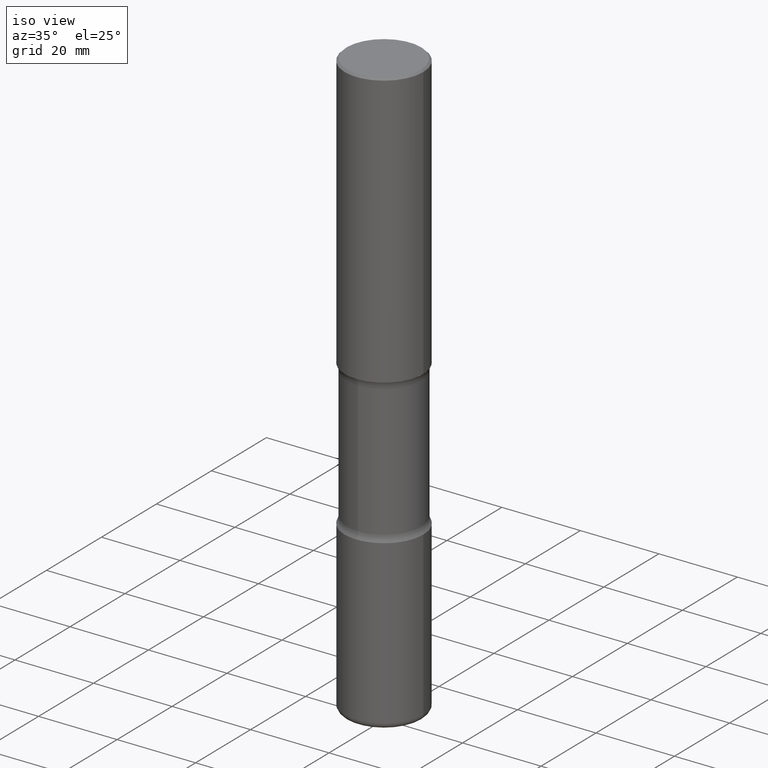
[diagram: clean part render]
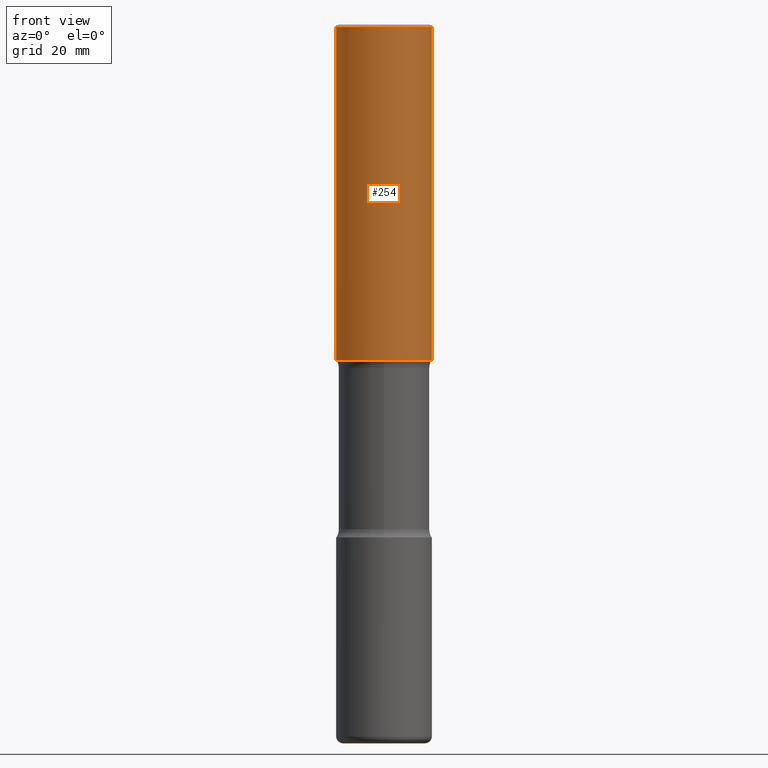
[diagram: tour spotlight — one face highlighted and labeled with its STEP entity id]
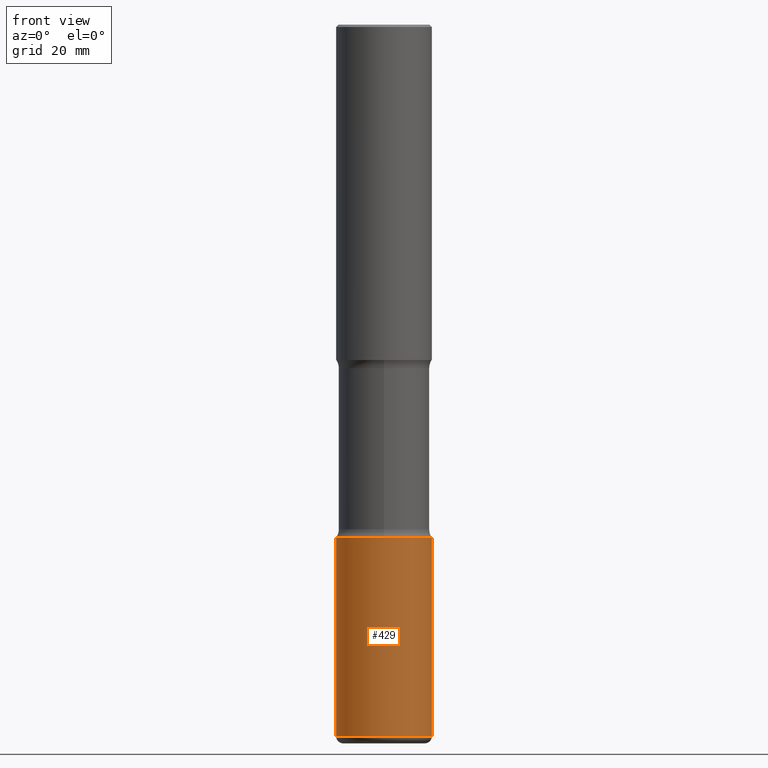
[diagram: tour spotlight — one face highlighted and labeled with its STEP entity id]
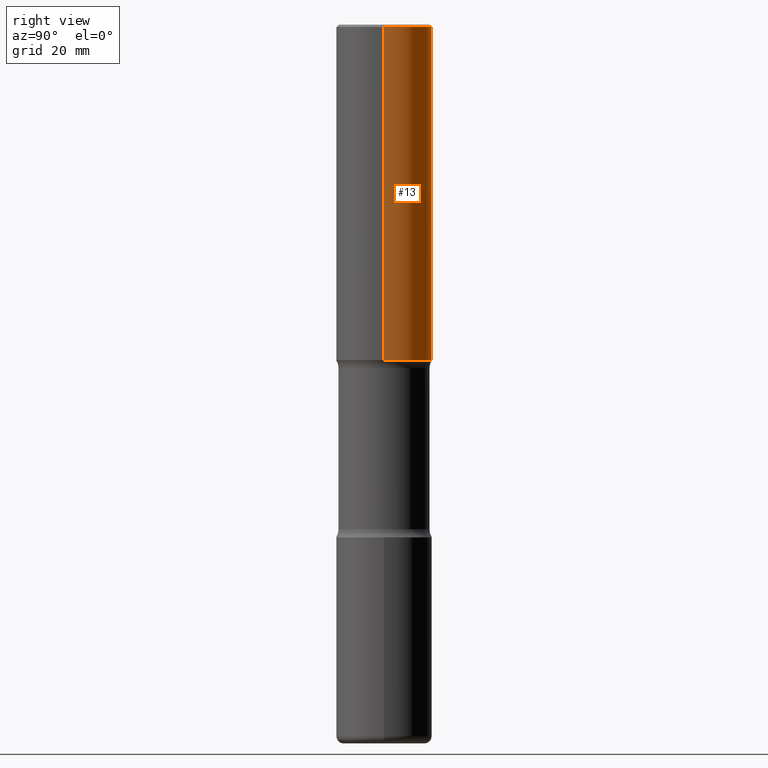
[diagram: tour spotlight — one face highlighted and labeled with its STEP entity id]
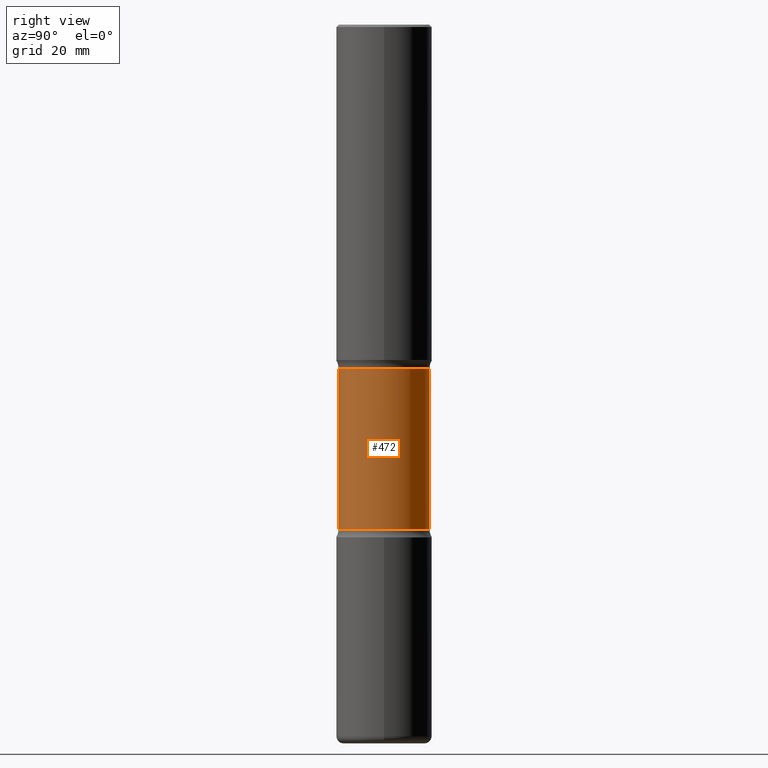
[diagram: tour spotlight — one face highlighted and labeled with its STEP entity id]
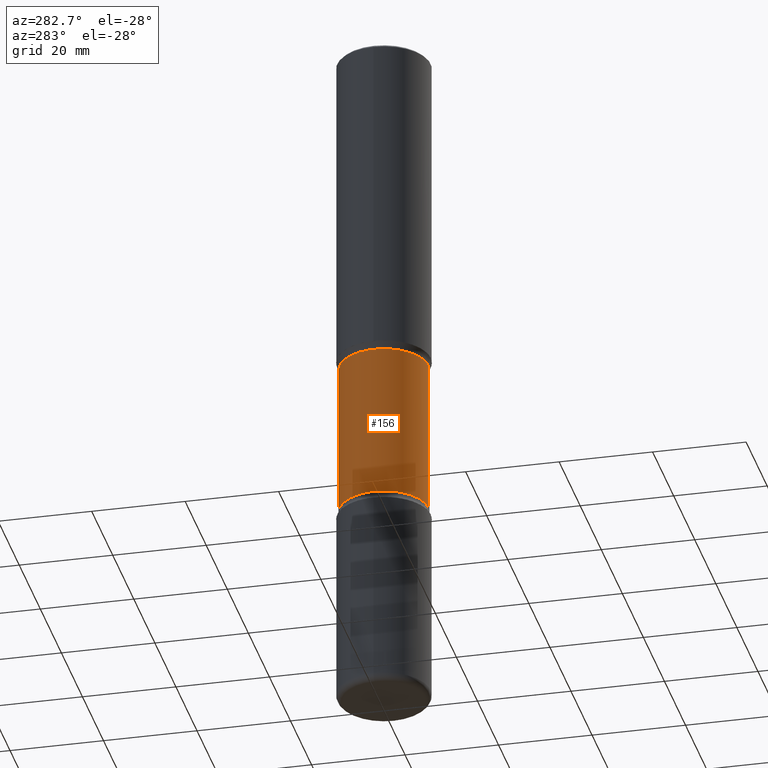
[diagram: tour spotlight — one face highlighted and labeled with its STEP entity id]
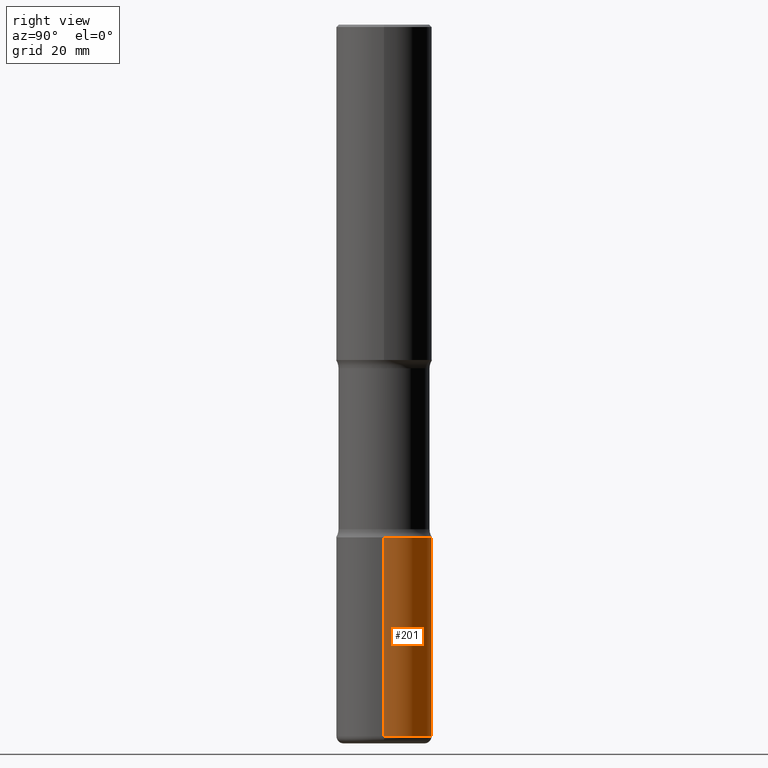
[diagram: tour spotlight — one face highlighted and labeled with its STEP entity id]
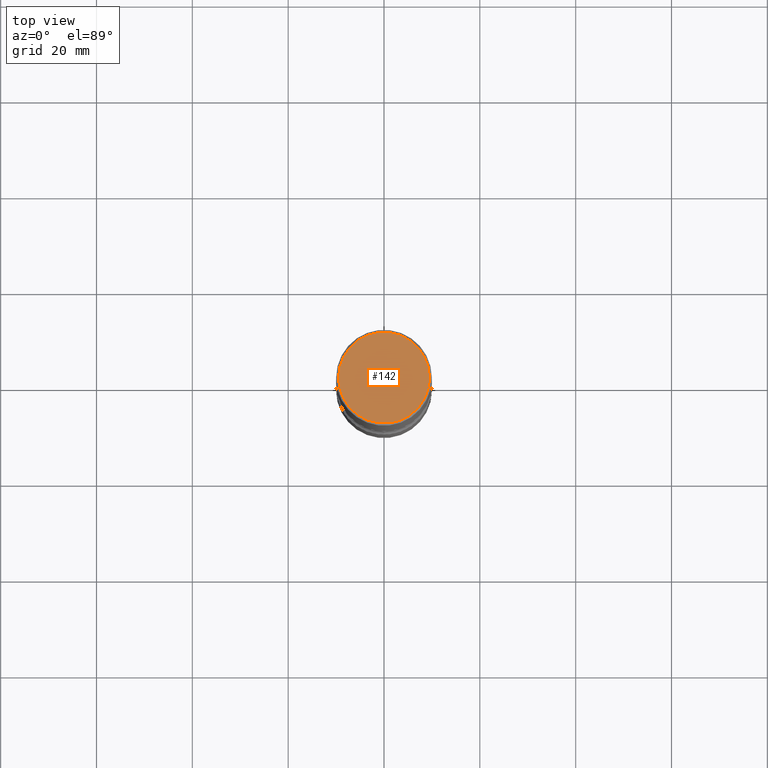
[diagram: tour spotlight — one face highlighted and labeled with its STEP entity id]
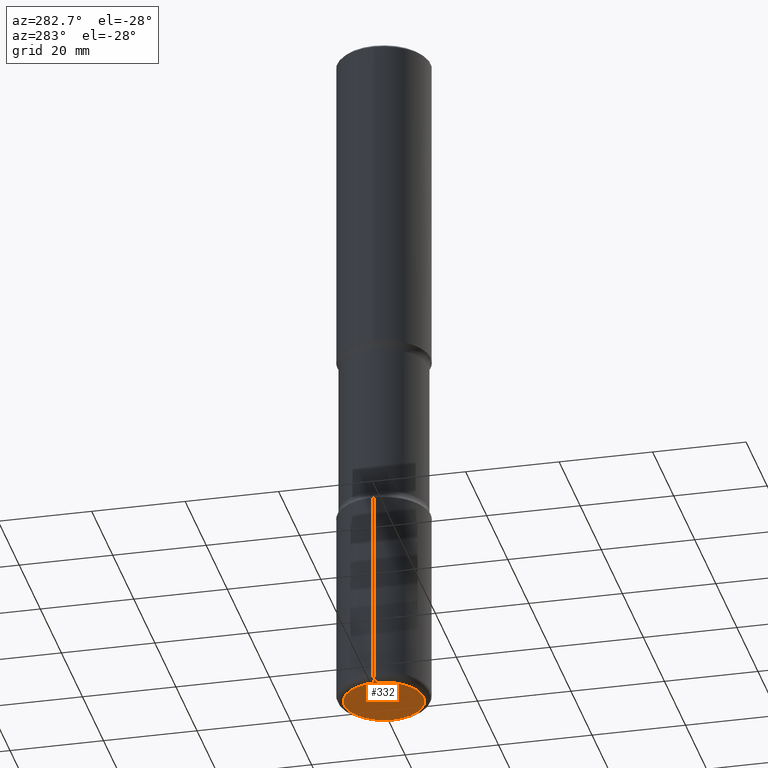
[diagram: tour spotlight — one face highlighted and labeled with its STEP entity id]
A machine part: a face-by-face anatomy tour. The part has 20 B-rep faces; the first image is the clean iso view, then the 8 largest visible faces are spotlighted one at a time (largest first), each with its STEP entity span.

Face 1 — front view, entity #254. In plain terms, the highlighted cylindrical surface (partial cylindrical patch) has radius 10 mm, axis along (-0, 0, 1).
Definition (entity closure, byte-faithful):
#25 = DIRECTION ( 'NONE',  ( -2.445468806185136877E-29, 3.491481338843145188E-15, 1.000000000000000000 ) ) ;
#36 = CARTESIAN_POINT ( 'NONE',  ( 0.3936999999999999389, -2.770807688499514945E-15, -0.02000000000000010103 ) ) ;
#52 = EDGE_CURVE ( 'NONE', #106, #219, #553, .T. ) ;
#56 = DIRECTION ( 'NONE',  ( 1.000000000000000000, -6.982962677686265133E-15, 0.000000000000000000 ) ) ;
#96 = AXIS2_PLACEMENT_3D ( 'NONE', #270, #329, #546 ) ;
#106 = VERTEX_POINT ( 'NONE', #276 ) ;
#118 = VECTOR ( 'NONE', #212, 39.37007874015748143 ) ;
#119 = AXIS2_PLACEMENT_3D ( 'NONE', #312, #486, #56 ) ;
#126 = VERTEX_POINT ( 'NONE', #330 ) ;
#131 = LINE ( 'NONE', #385, #118 ) ;
#133 = ORIENTED_EDGE ( 'NONE', *, *, #52, .T. ) ;
#152 = CARTESIAN_POINT ( 'NONE',  ( 0.3937000000000001054, -2.749192406205084005E-15, 1.919750796630860452E-29 ) ) ;
#174 = CIRCLE ( 'NONE', #119, 0.3937000000000002164 ) ;
#212 = DIRECTION ( 'NONE',  ( -2.445468806185136877E-29, 3.491481338843145188E-15, 1.000000000000000000 ) ) ;
#219 = VERTEX_POINT ( 'NONE', #36 ) ;
#232 = EDGE_CURVE ( 'NONE', #257, #126, #131, .T. ) ;
#254 = ADVANCED_FACE ( 'NONE', ( #426 ), #333, .T. ) ;
#257 = VERTEX_POINT ( 'NONE', #481 ) ;
#262 = ORIENTED_EDGE ( 'NONE', *, *, #418, .T. ) ;
#270 = CARTESIAN_POINT ( 'NONE',  ( 4.890937612370298557E-31, -6.982962677686327354E-17, -0.02000000000000010103 ) ) ;
#276 = CARTESIAN_POINT ( 'NONE',  ( 0.3937000000000002164, -1.237136582792290287E-14, -2.755899999999998240 ) ) ;
#277 = AXIS2_PLACEMENT_3D ( 'NONE', #301, #384, #522 ) ;
#301 = CARTESIAN_POINT ( 'NONE',  ( 0.000000000000000000, 0.000000000000000000, 0.000000000000000000 ) ) ;
#312 = CARTESIAN_POINT ( 'NONE',  ( 6.739467482965614869E-29, -9.622173421717819657E-15, -2.755899999999998240 ) ) ;
#329 = DIRECTION ( 'NONE',  ( -2.445468806185136597E-29, 3.491481338843145583E-15, 1.000000000000000000 ) ) ;
#330 = CARTESIAN_POINT ( 'NONE',  ( -0.3936999999999999389, 2.679362779428219524E-15, -0.02000000000000010103 ) ) ;
#333 = CYLINDRICAL_SURFACE ( 'NONE', #277, 0.3937000000000001054 ) ;
#338 = CIRCLE ( 'NONE', #96, 0.3936999999999999389 ) ;
#384 = DIRECTION ( 'NONE',  ( -2.445468806185136597E-29, 3.491481338843145583E-15, 1.000000000000000000 ) ) ;
#385 = CARTESIAN_POINT ( 'NONE',  ( -0.3937000000000001054, 2.797406750687515181E-15, -1.936584745033357016E-29 ) ) ;
#403 = VECTOR ( 'NONE', #25, 39.37007874015748143 ) ;
#418 = EDGE_CURVE ( 'NONE', #257, #106, #174, .T. ) ;
#426 = FACE_OUTER_BOUND ( 'NONE', #493, .T. ) ;
#476 = ORIENTED_EDGE ( 'NONE', *, *, #232, .F. ) ;
#481 = CARTESIAN_POINT ( 'NONE',  ( -0.3937000000000002720, -2.048594773559823141E-15, -2.755899999999998240 ) ) ;
#483 = ORIENTED_EDGE ( 'NONE', *, *, #554, .F. ) ;
#486 = DIRECTION ( 'NONE',  ( -2.445468806185136597E-29, 3.491481338843145583E-15, 1.000000000000000000 ) ) ;
#493 = EDGE_LOOP ( 'NONE', ( #476, #262, #133, #483 ) ) ;
#522 = DIRECTION ( 'NONE',  ( 1.000000000000000000, -6.982962677686266711E-15, 4.876176775795935793E-29 ) ) ;
#546 = DIRECTION ( 'NONE',  ( 1.000000000000000000, -6.982962677686266711E-15, 0.000000000000000000 ) ) ;
#553 = LINE ( 'NONE', #152, #403 ) ;
#554 = EDGE_CURVE ( 'NONE', #126, #219, #338, .T. ) ;

Face 2 — front view, entity #429. In plain terms, the highlighted cylindrical surface (partial cylindrical patch) has radius 10 mm, axis along (-0, 0, 1).
Definition (entity closure, byte-faithful):
#8 = AXIS2_PLACEMENT_3D ( 'NONE', #256, #15, #366 ) ;
#15 = DIRECTION ( 'NONE',  ( -2.445468806185136597E-29, 3.491481338843145583E-15, 1.000000000000000000 ) ) ;
#20 = VERTEX_POINT ( 'NONE', #279 ) ;
#33 = AXIS2_PLACEMENT_3D ( 'NONE', #297, #480, #252 ) ;
#34 = VECTOR ( 'NONE', #220, 39.37007874015748143 ) ;
#45 = EDGE_LOOP ( 'NONE', ( #145, #537, #223, #216 ) ) ;
#54 = CARTESIAN_POINT ( 'NONE',  ( 0.3937000000000003830, -2.749192406205085978E-15, 1.919750796630861853E-29 ) ) ;
#57 = VERTEX_POINT ( 'NONE', #70 ) ;
#70 = CARTESIAN_POINT ( 'NONE',  ( -0.3937000000000003830, -1.761518974872504126E-14, -5.846399999999999153 ) ) ;
#132 = LINE ( 'NONE', #54, #34 ) ;
#145 = ORIENTED_EDGE ( 'NONE', *, *, #300, .F. ) ;
#167 = VERTEX_POINT ( 'NONE', #240 ) ;
#186 = DIRECTION ( 'NONE',  ( -2.445468806185136597E-29, 3.491481338843145583E-15, 1.000000000000000000 ) ) ;
#190 = VECTOR ( 'NONE', #349, 39.37007874015748143 ) ;
#203 = CARTESIAN_POINT ( 'NONE',  ( -0.3937000000000003830, 2.797406750687517153E-15, -1.936584745033358137E-29 ) ) ;
#216 = ORIENTED_EDGE ( 'NONE', *, *, #337, .F. ) ;
#220 = DIRECTION ( 'NONE',  ( -2.445468806185136877E-29, 3.491481338843145188E-15, 1.000000000000000000 ) ) ;
#223 = ORIENTED_EDGE ( 'NONE', *, *, #489, .T. ) ;
#240 = CARTESIAN_POINT ( 'NONE',  ( 0.3937000000000003830, -2.316178890561765109E-14, -5.846399999999999153 ) ) ;
#252 = DIRECTION ( 'NONE',  ( 1.000000000000000000, -6.982962677686269077E-15, 0.000000000000000000 ) ) ;
#256 = CARTESIAN_POINT ( 'NONE',  ( 0.000000000000000000, 0.000000000000000000, 0.000000000000000000 ) ) ;
#279 = CARTESIAN_POINT ( 'NONE',  ( -0.3937000000000002720, -1.476299864302407750E-14, -4.212599999999998346 ) ) ;
#287 = AXIS2_PLACEMENT_3D ( 'NONE', #449, #186, #399 ) ;
#297 = CARTESIAN_POINT ( 'NONE',  ( 1.030178189293550378E-28, -1.470821428801063089E-14, -4.212599999999998346 ) ) ;
#300 = EDGE_CURVE ( 'NONE', #57, #20, #388, .T. ) ;
#303 = FACE_OUTER_BOUND ( 'NONE', #45, .T. ) ;
#304 = VERTEX_POINT ( 'NONE', #346 ) ;
#337 = EDGE_CURVE ( 'NONE', #20, #304, #386, .T. ) ;
#346 = CARTESIAN_POINT ( 'NONE',  ( 0.3937000000000002720, -1.745740669421571411E-14, -4.212599999999998346 ) ) ;
#349 = DIRECTION ( 'NONE',  ( -2.445468806185136877E-29, 3.491481338843145188E-15, 1.000000000000000000 ) ) ;
#362 = EDGE_CURVE ( 'NONE', #57, #167, #485, .T. ) ;
#363 = CYLINDRICAL_SURFACE ( 'NONE', #8, 0.3937000000000003830 ) ;
#366 = DIRECTION ( 'NONE',  ( 1.000000000000000000, -6.982962677686266711E-15, 4.876176775795935793E-29 ) ) ;
#386 = CIRCLE ( 'NONE', #33, 0.3937000000000002720 ) ;
#388 = LINE ( 'NONE', #203, #190 ) ;
#399 = DIRECTION ( 'NONE',  ( 1.000000000000000000, -6.982962677686269866E-15, 0.000000000000000000 ) ) ;
#429 = ADVANCED_FACE ( 'NONE', ( #303 ), #363, .T. ) ;
#449 = CARTESIAN_POINT ( 'NONE',  ( 1.429718882848077913E-28, -2.041259649941256157E-14, -5.846399999999999153 ) ) ;
#480 = DIRECTION ( 'NONE',  ( -2.445468806185136597E-29, 3.491481338843145583E-15, 1.000000000000000000 ) ) ;
#485 = CIRCLE ( 'NONE', #287, 0.3937000000000004940 ) ;
#489 = EDGE_CURVE ( 'NONE', #167, #304, #132, .T. ) ;
#537 = ORIENTED_EDGE ( 'NONE', *, *, #362, .T. ) ;

Face 3 — right view, entity #13. In plain terms, the highlighted cylindrical surface (partial cylindrical patch) has radius 10 mm, axis along (-0, 0, 1).
Definition (entity closure, byte-faithful):
#13 = ADVANCED_FACE ( 'NONE', ( #442 ), #178, .T. ) ;
#21 = EDGE_CURVE ( 'NONE', #106, #257, #94, .T. ) ;
#25 = DIRECTION ( 'NONE',  ( -2.445468806185136877E-29, 3.491481338843145188E-15, 1.000000000000000000 ) ) ;
#36 = CARTESIAN_POINT ( 'NONE',  ( 0.3936999999999999389, -2.770807688499514945E-15, -0.02000000000000010103 ) ) ;
#40 = CIRCLE ( 'NONE', #438, 0.3936999999999999389 ) ;
#52 = EDGE_CURVE ( 'NONE', #106, #219, #553, .T. ) ;
#66 = CARTESIAN_POINT ( 'NONE',  ( 6.739467482965614869E-29, -9.622173421717819657E-15, -2.755899999999998240 ) ) ;
#94 = CIRCLE ( 'NONE', #307, 0.3937000000000002164 ) ;
#106 = VERTEX_POINT ( 'NONE', #276 ) ;
#117 = DIRECTION ( 'NONE',  ( 1.000000000000000000, -6.982962677686266711E-15, 0.000000000000000000 ) ) ;
#118 = VECTOR ( 'NONE', #212, 39.37007874015748143 ) ;
#126 = VERTEX_POINT ( 'NONE', #330 ) ;
#131 = LINE ( 'NONE', #385, #118 ) ;
#143 = ORIENTED_EDGE ( 'NONE', *, *, #232, .T. ) ;
#150 = DIRECTION ( 'NONE',  ( -2.445468806185136597E-29, 3.491481338843145583E-15, 1.000000000000000000 ) ) ;
#152 = CARTESIAN_POINT ( 'NONE',  ( 0.3937000000000001054, -2.749192406205084005E-15, 1.919750796630860452E-29 ) ) ;
#178 = CYLINDRICAL_SURFACE ( 'NONE', #327, 0.3937000000000001054 ) ;
#204 = CARTESIAN_POINT ( 'NONE',  ( 4.890937612370298557E-31, -6.982962677686327354E-17, -0.02000000000000010103 ) ) ;
#212 = DIRECTION ( 'NONE',  ( -2.445468806185136877E-29, 3.491481338843145188E-15, 1.000000000000000000 ) ) ;
#219 = VERTEX_POINT ( 'NONE', #36 ) ;
#232 = EDGE_CURVE ( 'NONE', #257, #126, #131, .T. ) ;
#242 = DIRECTION ( 'NONE',  ( -2.445468806185136597E-29, 3.491481338843145583E-15, 1.000000000000000000 ) ) ;
#257 = VERTEX_POINT ( 'NONE', #481 ) ;
#266 = ORIENTED_EDGE ( 'NONE', *, *, #280, .F. ) ;
#276 = CARTESIAN_POINT ( 'NONE',  ( 0.3937000000000002164, -1.237136582792290287E-14, -2.755899999999998240 ) ) ;
#280 = EDGE_CURVE ( 'NONE', #219, #126, #40, .T. ) ;
#307 = AXIS2_PLACEMENT_3D ( 'NONE', #66, #419, #545 ) ;
#314 = EDGE_LOOP ( 'NONE', ( #533, #143, #266, #407 ) ) ;
#327 = AXIS2_PLACEMENT_3D ( 'NONE', #528, #150, #499 ) ;
#330 = CARTESIAN_POINT ( 'NONE',  ( -0.3936999999999999389, 2.679362779428219524E-15, -0.02000000000000010103 ) ) ;
#385 = CARTESIAN_POINT ( 'NONE',  ( -0.3937000000000001054, 2.797406750687515181E-15, -1.936584745033357016E-29 ) ) ;
#403 = VECTOR ( 'NONE', #25, 39.37007874015748143 ) ;
#407 = ORIENTED_EDGE ( 'NONE', *, *, #52, .F. ) ;
#419 = DIRECTION ( 'NONE',  ( -2.445468806185136597E-29, 3.491481338843145583E-15, 1.000000000000000000 ) ) ;
#438 = AXIS2_PLACEMENT_3D ( 'NONE', #204, #242, #117 ) ;
#442 = FACE_OUTER_BOUND ( 'NONE', #314, .T. ) ;
#481 = CARTESIAN_POINT ( 'NONE',  ( -0.3937000000000002720, -2.048594773559823141E-15, -2.755899999999998240 ) ) ;
#499 = DIRECTION ( 'NONE',  ( 1.000000000000000000, -6.982962677686266711E-15, 4.876176775795935793E-29 ) ) ;
#528 = CARTESIAN_POINT ( 'NONE',  ( 0.000000000000000000, 0.000000000000000000, 0.000000000000000000 ) ) ;
#533 = ORIENTED_EDGE ( 'NONE', *, *, #21, .T. ) ;
#545 = DIRECTION ( 'NONE',  ( 1.000000000000000000, -6.982962677686265133E-15, 0.000000000000000000 ) ) ;
#553 = LINE ( 'NONE', #152, #403 ) ;

Face 4 — right view, entity #472. In plain terms, the highlighted cylindrical surface (partial cylindrical patch) has radius 9.4996 mm, axis along (0, -0, -1).
Definition (entity closure, byte-faithful):
#4 = EDGE_CURVE ( 'NONE', #389, #90, #452, .T. ) ;
#9 = DIRECTION ( 'NONE',  ( 6.982962677686266711E-15, 1.000000000000000000, -2.921762560068729411E-15 ) ) ;
#11 = CARTESIAN_POINT ( 'NONE',  ( -2.633402156444536217E-15, -0.3740000000000101577, -2.823256588393413313 ) ) ;
#18 = AXIS2_PLACEMENT_3D ( 'NONE', #405, #22, #51 ) ;
#22 = DIRECTION ( 'NONE',  ( 2.499563752616943710E-29, -3.414014296659653741E-15, -1.000000000000000000 ) ) ;
#32 = CARTESIAN_POINT ( 'NONE',  ( -2.633402156444500718E-15, -0.3740000000000146541, -4.145243411606582384 ) ) ;
#51 = DIRECTION ( 'NONE',  ( 6.982962677686266711E-15, 1.000000000000000000, -2.921762560068729411E-15 ) ) ;
#53 = ORIENTED_EDGE ( 'NONE', *, *, #234, .T. ) ;
#60 = LINE ( 'NONE', #310, #268 ) ;
#61 = CARTESIAN_POINT ( 'NONE',  ( -2.565826251166408560E-15, -0.3740000000000206493, -5.905499999999997307 ) ) ;
#85 = ORIENTED_EDGE ( 'NONE', *, *, #354, .F. ) ;
#90 = VERTEX_POINT ( 'NONE', #32 ) ;
#180 = VERTEX_POINT ( 'NONE', #200 ) ;
#199 = AXIS2_PLACEMENT_3D ( 'NONE', #395, #352, #9 ) ;
#200 = CARTESIAN_POINT ( 'NONE',  ( 2.611628041454766160E-15, 0.3739999999999856772, -4.145243411606584161 ) ) ;
#214 = FACE_OUTER_BOUND ( 'NONE', #343, .T. ) ;
#226 = ORIENTED_EDGE ( 'NONE', *, *, #464, .F. ) ;
#234 = EDGE_CURVE ( 'NONE', #487, #389, #484, .T. ) ;
#250 = CIRCLE ( 'NONE', #18, 0.3740000000000001656 ) ;
#259 = VECTOR ( 'NONE', #260, 39.37007874015748143 ) ;
#260 = DIRECTION ( 'NONE',  ( 2.499563752616943710E-29, -3.414014296659653741E-15, -1.000000000000000000 ) ) ;
#261 = CYLINDRICAL_SURFACE ( 'NONE', #199, 0.3740000000000001656 ) ;
#268 = VECTOR ( 'NONE', #536, 39.37007874015748143 ) ;
#310 = CARTESIAN_POINT ( 'NONE',  ( 2.611628041454809941E-15, 0.3739999999999796820, -5.905499999999999972 ) ) ;
#342 = DIRECTION ( 'NONE',  ( 6.982962677686266711E-15, 1.000000000000000000, -2.921762560068729411E-15 ) ) ;
#343 = EDGE_LOOP ( 'NONE', ( #53, #444, #226, #85 ) ) ;
#352 = DIRECTION ( 'NONE',  ( 2.499563752616943710E-29, -3.414014296659653741E-15, -1.000000000000000000 ) ) ;
#354 = EDGE_CURVE ( 'NONE', #487, #180, #60, .T. ) ;
#389 = VERTEX_POINT ( 'NONE', #11 ) ;
#395 = CARTESIAN_POINT ( 'NONE',  ( 1.453329336974072664E-28, -2.048779909082575425E-14, -5.905499999999998195 ) ) ;
#405 = CARTESIAN_POINT ( 'NONE',  ( 1.013341980608738414E-28, -1.447825793226129018E-14, -4.145243411606583273 ) ) ;
#423 = CARTESIAN_POINT ( 'NONE',  ( 6.829029461346524548E-29, -9.964976017815853586E-15, -2.823256588393414646 ) ) ;
#443 = CARTESIAN_POINT ( 'NONE',  ( 2.611628041454733028E-15, 0.3739999999999901736, -2.823256588393415534 ) ) ;
#444 = ORIENTED_EDGE ( 'NONE', *, *, #4, .T. ) ;
#452 = LINE ( 'NONE', #61, #259 ) ;
#464 = EDGE_CURVE ( 'NONE', #180, #90, #250, .T. ) ;
#472 = ADVANCED_FACE ( 'NONE', ( #214 ), #261, .T. ) ;
#484 = CIRCLE ( 'NONE', #540, 0.3740000000000001656 ) ;
#487 = VERTEX_POINT ( 'NONE', #443 ) ;
#509 = DIRECTION ( 'NONE',  ( 2.499563752616943710E-29, -3.414014296659653741E-15, -1.000000000000000000 ) ) ;
#536 = DIRECTION ( 'NONE',  ( 2.499563752616943710E-29, -3.414014296659653741E-15, -1.000000000000000000 ) ) ;
#540 = AXIS2_PLACEMENT_3D ( 'NONE', #423, #509, #342 ) ;

Face 5 — auxiliary view, entity #156. In plain terms, the highlighted cylindrical surface (partial cylindrical patch) has radius 9.4996 mm, axis along (0, -0, -1).
Definition (entity closure, byte-faithful):
#4 = EDGE_CURVE ( 'NONE', #389, #90, #452, .T. ) ;
#11 = CARTESIAN_POINT ( 'NONE',  ( -2.633402156444536217E-15, -0.3740000000000101577, -2.823256588393413313 ) ) ;
#32 = CARTESIAN_POINT ( 'NONE',  ( -2.633402156444500718E-15, -0.3740000000000146541, -4.145243411606582384 ) ) ;
#37 = DIRECTION ( 'NONE',  ( 6.982962677686266711E-15, 1.000000000000000000, -2.921762560068729411E-15 ) ) ;
#60 = LINE ( 'NONE', #310, #268 ) ;
#61 = CARTESIAN_POINT ( 'NONE',  ( -2.565826251166408560E-15, -0.3740000000000206493, -5.905499999999997307 ) ) ;
#90 = VERTEX_POINT ( 'NONE', #32 ) ;
#99 = EDGE_LOOP ( 'NONE', ( #367, #253, #295, #470 ) ) ;
#113 = DIRECTION ( 'NONE',  ( 6.982962677686266711E-15, 1.000000000000000000, -2.921762560068729411E-15 ) ) ;
#156 = ADVANCED_FACE ( 'NONE', ( #325 ), #409, .T. ) ;
#160 = CIRCLE ( 'NONE', #467, 0.3740000000000001656 ) ;
#180 = VERTEX_POINT ( 'NONE', #200 ) ;
#191 = AXIS2_PLACEMENT_3D ( 'NONE', #525, #258, #492 ) ;
#200 = CARTESIAN_POINT ( 'NONE',  ( 2.611628041454766160E-15, 0.3739999999999856772, -4.145243411606584161 ) ) ;
#205 = EDGE_CURVE ( 'NONE', #90, #180, #160, .T. ) ;
#244 = CARTESIAN_POINT ( 'NONE',  ( 1.013341980608738414E-28, -1.447825793226129018E-14, -4.145243411606583273 ) ) ;
#253 = ORIENTED_EDGE ( 'NONE', *, *, #441, .T. ) ;
#258 = DIRECTION ( 'NONE',  ( 2.499563752616943710E-29, -3.414014296659653741E-15, -1.000000000000000000 ) ) ;
#259 = VECTOR ( 'NONE', #260, 39.37007874015748143 ) ;
#260 = DIRECTION ( 'NONE',  ( 2.499563752616943710E-29, -3.414014296659653741E-15, -1.000000000000000000 ) ) ;
#268 = VECTOR ( 'NONE', #536, 39.37007874015748143 ) ;
#295 = ORIENTED_EDGE ( 'NONE', *, *, #354, .T. ) ;
#310 = CARTESIAN_POINT ( 'NONE',  ( 2.611628041454809941E-15, 0.3739999999999796820, -5.905499999999999972 ) ) ;
#325 = FACE_OUTER_BOUND ( 'NONE', #99, .T. ) ;
#354 = EDGE_CURVE ( 'NONE', #487, #180, #60, .T. ) ;
#367 = ORIENTED_EDGE ( 'NONE', *, *, #4, .F. ) ;
#389 = VERTEX_POINT ( 'NONE', #11 ) ;
#409 = CYLINDRICAL_SURFACE ( 'NONE', #450, 0.3740000000000001656 ) ;
#417 = CARTESIAN_POINT ( 'NONE',  ( 1.453329336974072664E-28, -2.048779909082575425E-14, -5.905499999999998195 ) ) ;
#441 = EDGE_CURVE ( 'NONE', #389, #487, #512, .T. ) ;
#443 = CARTESIAN_POINT ( 'NONE',  ( 2.611628041454733028E-15, 0.3739999999999901736, -2.823256588393415534 ) ) ;
#450 = AXIS2_PLACEMENT_3D ( 'NONE', #417, #466, #113 ) ;
#452 = LINE ( 'NONE', #61, #259 ) ;
#466 = DIRECTION ( 'NONE',  ( 2.499563752616943710E-29, -3.414014296659653741E-15, -1.000000000000000000 ) ) ;
#467 = AXIS2_PLACEMENT_3D ( 'NONE', #244, #517, #37 ) ;
#470 = ORIENTED_EDGE ( 'NONE', *, *, #205, .F. ) ;
#487 = VERTEX_POINT ( 'NONE', #443 ) ;
#492 = DIRECTION ( 'NONE',  ( 6.982962677686266711E-15, 1.000000000000000000, -2.921762560068729411E-15 ) ) ;
#512 = CIRCLE ( 'NONE', #191, 0.3740000000000001656 ) ;
#517 = DIRECTION ( 'NONE',  ( 2.499563752616943710E-29, -3.414014296659653741E-15, -1.000000000000000000 ) ) ;
#525 = CARTESIAN_POINT ( 'NONE',  ( 6.829029461346524548E-29, -9.964976017815853586E-15, -2.823256588393414646 ) ) ;
#536 = DIRECTION ( 'NONE',  ( 2.499563752616943710E-29, -3.414014296659653741E-15, -1.000000000000000000 ) ) ;

Face 6 — right view, entity #201. In plain terms, the highlighted cylindrical surface (partial cylindrical patch) has radius 10 mm, axis along (-0, 0, 1).
Definition (entity closure, byte-faithful):
#5 = DIRECTION ( 'NONE',  ( 1.000000000000000000, -6.982962677686266711E-15, 4.876176775795935793E-29 ) ) ;
#20 = VERTEX_POINT ( 'NONE', #279 ) ;
#34 = VECTOR ( 'NONE', #220, 39.37007874015748143 ) ;
#48 = ORIENTED_EDGE ( 'NONE', *, *, #73, .F. ) ;
#54 = CARTESIAN_POINT ( 'NONE',  ( 0.3937000000000003830, -2.749192406205085978E-15, 1.919750796630861853E-29 ) ) ;
#55 = ORIENTED_EDGE ( 'NONE', *, *, #300, .T. ) ;
#57 = VERTEX_POINT ( 'NONE', #70 ) ;
#58 = AXIS2_PLACEMENT_3D ( 'NONE', #339, #431, #247 ) ;
#70 = CARTESIAN_POINT ( 'NONE',  ( -0.3937000000000003830, -1.761518974872504126E-14, -5.846399999999999153 ) ) ;
#73 = EDGE_CURVE ( 'NONE', #304, #20, #181, .T. ) ;
#132 = LINE ( 'NONE', #54, #34 ) ;
#159 = ORIENTED_EDGE ( 'NONE', *, *, #228, .T. ) ;
#167 = VERTEX_POINT ( 'NONE', #240 ) ;
#181 = CIRCLE ( 'NONE', #296, 0.3937000000000002720 ) ;
#190 = VECTOR ( 'NONE', #349, 39.37007874015748143 ) ;
#192 = CYLINDRICAL_SURFACE ( 'NONE', #550, 0.3937000000000003830 ) ;
#201 = ADVANCED_FACE ( 'NONE', ( #456 ), #192, .T. ) ;
#203 = CARTESIAN_POINT ( 'NONE',  ( -0.3937000000000003830, 2.797406750687517153E-15, -1.936584745033358137E-29 ) ) ;
#215 = CIRCLE ( 'NONE', #58, 0.3937000000000004940 ) ;
#220 = DIRECTION ( 'NONE',  ( -2.445468806185136877E-29, 3.491481338843145188E-15, 1.000000000000000000 ) ) ;
#228 = EDGE_CURVE ( 'NONE', #167, #57, #215, .T. ) ;
#238 = CARTESIAN_POINT ( 'NONE',  ( 1.030178189293550378E-28, -1.470821428801063089E-14, -4.212599999999998346 ) ) ;
#240 = CARTESIAN_POINT ( 'NONE',  ( 0.3937000000000003830, -2.316178890561765109E-14, -5.846399999999999153 ) ) ;
#247 = DIRECTION ( 'NONE',  ( 1.000000000000000000, -6.982962677686269866E-15, 0.000000000000000000 ) ) ;
#271 = ORIENTED_EDGE ( 'NONE', *, *, #489, .F. ) ;
#279 = CARTESIAN_POINT ( 'NONE',  ( -0.3937000000000002720, -1.476299864302407750E-14, -4.212599999999998346 ) ) ;
#288 = DIRECTION ( 'NONE',  ( -2.445468806185136597E-29, 3.491481338843145583E-15, 1.000000000000000000 ) ) ;
#296 = AXIS2_PLACEMENT_3D ( 'NONE', #238, #463, #379 ) ;
#300 = EDGE_CURVE ( 'NONE', #57, #20, #388, .T. ) ;
#304 = VERTEX_POINT ( 'NONE', #346 ) ;
#339 = CARTESIAN_POINT ( 'NONE',  ( 1.429718882848077913E-28, -2.041259649941256157E-14, -5.846399999999999153 ) ) ;
#346 = CARTESIAN_POINT ( 'NONE',  ( 0.3937000000000002720, -1.745740669421571411E-14, -4.212599999999998346 ) ) ;
#349 = DIRECTION ( 'NONE',  ( -2.445468806185136877E-29, 3.491481338843145188E-15, 1.000000000000000000 ) ) ;
#379 = DIRECTION ( 'NONE',  ( 1.000000000000000000, -6.982962677686269077E-15, 0.000000000000000000 ) ) ;
#388 = LINE ( 'NONE', #203, #190 ) ;
#393 = CARTESIAN_POINT ( 'NONE',  ( 0.000000000000000000, 0.000000000000000000, 0.000000000000000000 ) ) ;
#431 = DIRECTION ( 'NONE',  ( -2.445468806185136597E-29, 3.491481338843145583E-15, 1.000000000000000000 ) ) ;
#456 = FACE_OUTER_BOUND ( 'NONE', #518, .T. ) ;
#463 = DIRECTION ( 'NONE',  ( -2.445468806185136597E-29, 3.491481338843145583E-15, 1.000000000000000000 ) ) ;
#489 = EDGE_CURVE ( 'NONE', #167, #304, #132, .T. ) ;
#518 = EDGE_LOOP ( 'NONE', ( #159, #55, #48, #271 ) ) ;
#550 = AXIS2_PLACEMENT_3D ( 'NONE', #393, #288, #5 ) ;

Face 7 — top view, entity #142. In plain terms, the highlighted planar face has unit normal (0, -0, -1).
Definition (entity closure, byte-faithful):
#29 = CARTESIAN_POINT ( 'NONE',  ( 2.609533152651356620E-15, 0.3736999999999999211, -1.300498063835582814E-15 ) ) ;
#72 = CARTESIAN_POINT ( 'NONE',  ( -0.3736999999999999211, 2.644447966039788269E-15, 8.537024980182450727E-18 ) ) ;
#81 = VERTEX_POINT ( 'NONE', #322 ) ;
#102 = VERTEX_POINT ( 'NONE', #72 ) ;
#112 = AXIS2_PLACEMENT_3D ( 'NONE', #436, #179, #222 ) ;
#136 = AXIS2_PLACEMENT_3D ( 'NONE', #29, #507, #154 ) ;
#142 = ADVANCED_FACE ( 'NONE', ( #331 ), #410, .F. ) ;
#154 = DIRECTION ( 'NONE',  ( -1.000000000000000000, 6.982962677686265922E-15, -4.876176775795935793E-29 ) ) ;
#169 = CARTESIAN_POINT ( 'NONE',  ( -2.087702828670439639E-46, 2.980686340760894400E-32, 8.537024980200822558E-18 ) ) ;
#179 = DIRECTION ( 'NONE',  ( -2.445468806185136597E-29, 3.491481338843145583E-15, 1.000000000000000000 ) ) ;
#222 = DIRECTION ( 'NONE',  ( 1.000000000000000000, -6.982962677686266711E-15, 4.876212485538976239E-29 ) ) ;
#249 = DIRECTION ( 'NONE',  ( -2.445468806185136597E-29, 3.491481338843145583E-15, 1.000000000000000000 ) ) ;
#285 = EDGE_CURVE ( 'NONE', #81, #102, #380, .T. ) ;
#286 = AXIS2_PLACEMENT_3D ( 'NONE', #169, #249, #420 ) ;
#322 = CARTESIAN_POINT ( 'NONE',  ( 0.3736999999999999211, -2.667287895133367964E-15, 8.537024980219274507E-18 ) ) ;
#331 = FACE_OUTER_BOUND ( 'NONE', #446, .T. ) ;
#340 = ORIENTED_EDGE ( 'NONE', *, *, #285, .T. ) ;
#380 = CIRCLE ( 'NONE', #286, 0.3736999999999999211 ) ;
#381 = CIRCLE ( 'NONE', #112, 0.3736999999999999211 ) ;
#410 = PLANE ( 'NONE',  #136 ) ;
#420 = DIRECTION ( 'NONE',  ( 1.000000000000000000, -6.982962677686266711E-15, 4.876212485538976239E-29 ) ) ;
#436 = CARTESIAN_POINT ( 'NONE',  ( -2.087702828670439639E-46, 2.980686340760894400E-32, 8.537024980200822558E-18 ) ) ;
#446 = EDGE_LOOP ( 'NONE', ( #497, #340 ) ) ;
#447 = EDGE_CURVE ( 'NONE', #102, #81, #381, .T. ) ;
#497 = ORIENTED_EDGE ( 'NONE', *, *, #447, .T. ) ;
#507 = DIRECTION ( 'NONE',  ( 2.438088387897960049E-29, -3.491481338843145188E-15, -1.000000000000000000 ) ) ;

Face 8 — auxiliary view, entity #332. In plain terms, the highlighted planar face has unit normal (0, -0, -1).
Definition (entity closure, byte-faithful):
#1 = FACE_OUTER_BOUND ( 'NONE', #432, .T. ) ;
#3 = CARTESIAN_POINT ( 'NONE',  ( 1.444171603492631822E-28, -2.061894304653818881E-14, -5.905499999999998195 ) ) ;
#44 = DIRECTION ( 'NONE',  ( 2.438088387897960049E-29, -3.491481338843145188E-15, -1.000000000000000000 ) ) ;
#67 = AXIS2_PLACEMENT_3D ( 'NONE', #3, #44, #127 ) ;
#91 = CARTESIAN_POINT ( 'NONE',  ( 1.444171603492631822E-28, -2.061894304653818881E-14, -5.905499999999998195 ) ) ;
#95 = AXIS2_PLACEMENT_3D ( 'NONE', #382, #319, #274 ) ;
#127 = DIRECTION ( 'NONE',  ( -1.000000000000000000, 6.982962677686265922E-15, -4.876176775795935793E-29 ) ) ;
#144 = DIRECTION ( 'NONE',  ( 1.000000000000000000, -6.982962677686269866E-15, 0.000000000000000000 ) ) ;
#166 = PLANE ( 'NONE',  #67 ) ;
#194 = EDGE_CURVE ( 'NONE', #292, #309, #529, .T. ) ;
#274 = DIRECTION ( 'NONE',  ( 1.000000000000000000, -6.982962677686269866E-15, 0.000000000000000000 ) ) ;
#292 = VERTEX_POINT ( 'NONE', #433 ) ;
#309 = VERTEX_POINT ( 'NONE', #475 ) ;
#319 = DIRECTION ( 'NONE',  ( -2.445468806185136597E-29, 3.491481338843145583E-15, 1.000000000000000000 ) ) ;
#332 = ADVANCED_FACE ( 'NONE', ( #1 ), #166, .T. ) ;
#355 = DIRECTION ( 'NONE',  ( -2.445468806185136597E-29, 3.491481338843145583E-15, 1.000000000000000000 ) ) ;
#364 = EDGE_CURVE ( 'NONE', #309, #292, #372, .T. ) ;
#372 = CIRCLE ( 'NONE', #503, 0.3346000000000005081 ) ;
#382 = CARTESIAN_POINT ( 'NONE',  ( 1.444171603492631822E-28, -2.061894304653818881E-14, -5.905499999999998195 ) ) ;
#398 = ORIENTED_EDGE ( 'NONE', *, *, #364, .F. ) ;
#432 = EDGE_LOOP ( 'NONE', ( #515, #398 ) ) ;
#433 = CARTESIAN_POINT ( 'NONE',  ( 0.3346000000000005081, -2.295544235849201754E-14, -5.905499999999998195 ) ) ;
#475 = CARTESIAN_POINT ( 'NONE',  ( -0.3346000000000005081, -1.792832840070497055E-14, -5.905499999999998195 ) ) ;
#503 = AXIS2_PLACEMENT_3D ( 'NONE', #91, #355, #144 ) ;
#515 = ORIENTED_EDGE ( 'NONE', *, *, #194, .F. ) ;
#529 = CIRCLE ( 'NONE', #95, 0.3346000000000005081 ) ;